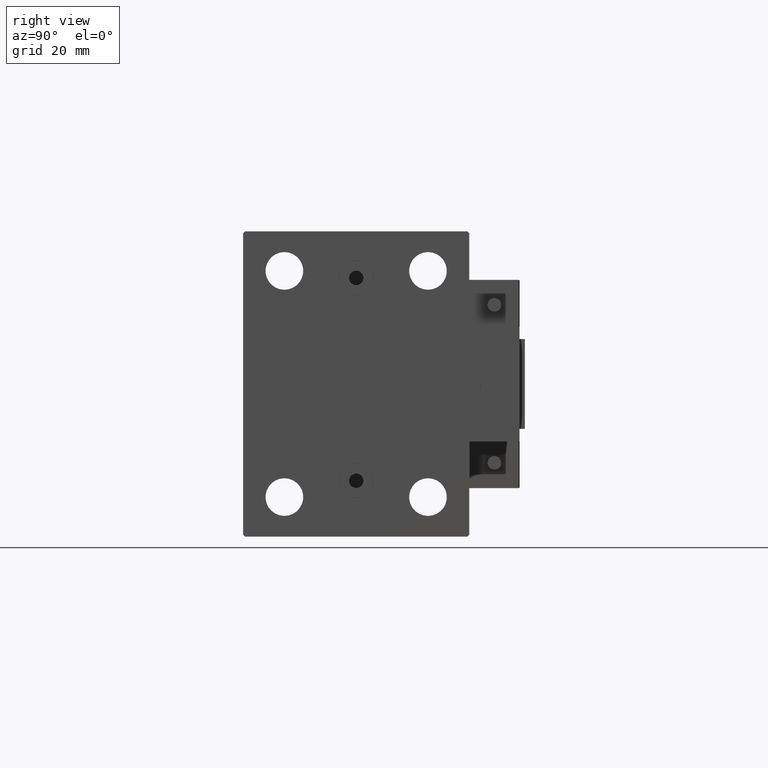
[diagram: clean part render]
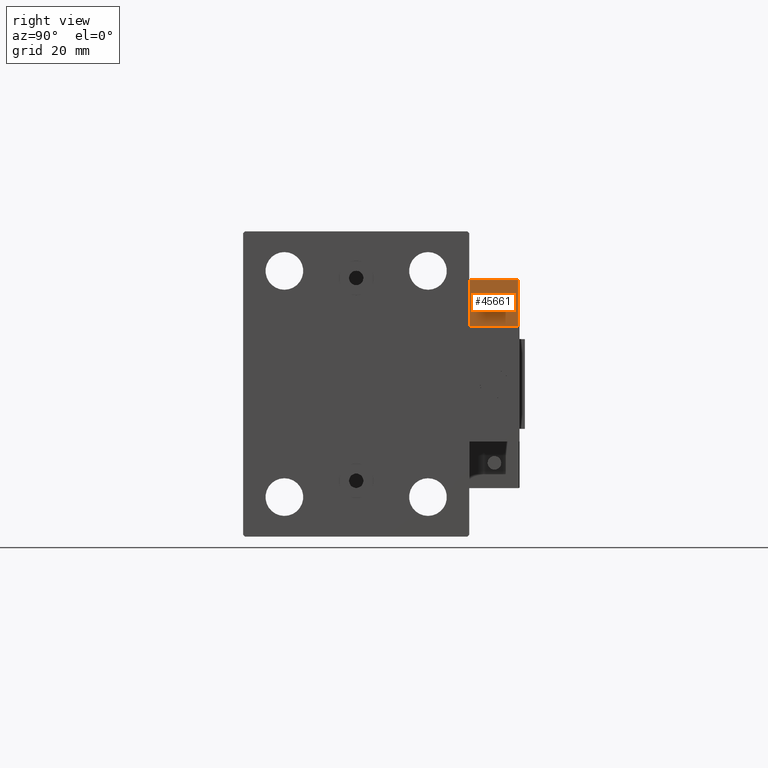
[diagram: same view with one face highlighted and labeled with its STEP entity id]
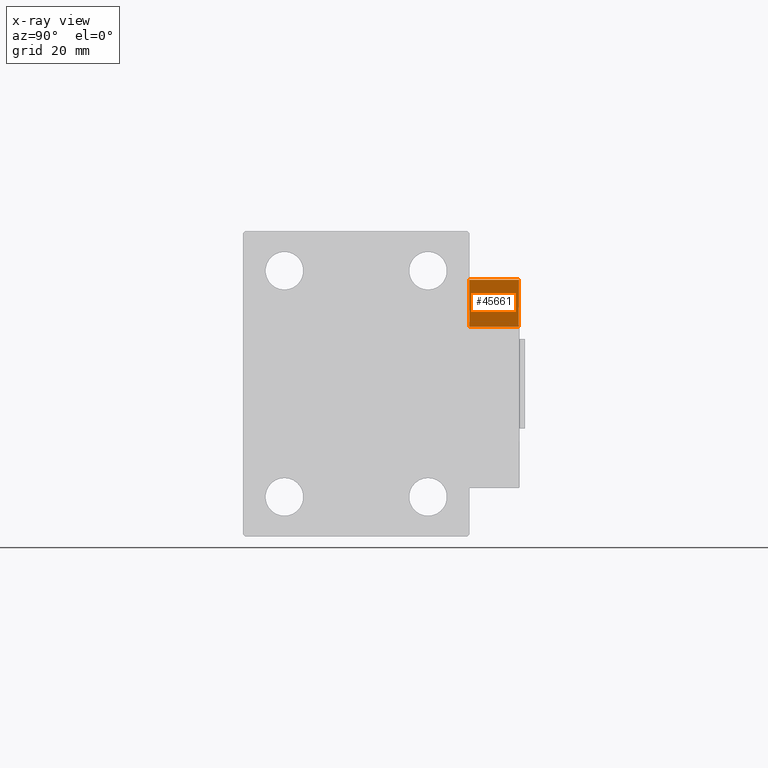
[diagram: x-ray of the same camera — body ghosted, the highlighted face saturated]
A machine part, right view. The second image highlights one B-rep face of the part: STEP entity #45661.
The next image is the same camera in x-ray: the body ghosted, the highlighted face saturated — about 6% of this face is hidden behind the body in this view.
In plain terms, the highlighted planar face has unit normal (-1, 0, 0).
Its self-contained STEP definition (entity closure, byte-faithful):
#123 = EDGE_CURVE ( 'NONE', #47266, #44735, #46110, .T. ) ;
#3758 = VECTOR ( 'NONE', #42307, 1000.000000000000000 ) ;
#4427 = VECTOR ( 'NONE', #41161, 1000.000000000000000 ) ;
#4790 = VERTEX_POINT ( 'NONE', #22324 ) ;
#10042 = CARTESIAN_POINT ( 'NONE',  ( -26.99999999999994671, 7.000000000000005329, 14.00000000000000000 ) ) ;
#10649 = DIRECTION ( 'NONE',  ( -8.006416042969869188E-16, -1.000000000000000000, 0.000000000000000000 ) ) ;
#11448 = VERTEX_POINT ( 'NONE', #44622 ) ;
#15547 = PLANE ( 'NONE',  #20853 ) ;
#15953 = CARTESIAN_POINT ( 'NONE',  ( -26.99999999999993605, 20.00000000000002132, 14.00000000000000000 ) ) ;
#18577 = ORIENTED_EDGE ( 'NONE', *, *, #38140, .F. ) ;
#19747 = CARTESIAN_POINT ( 'NONE',  ( -26.99999999999993605, 20.00000000000002132, 13.70000000000000107 ) ) ;
#20290 = EDGE_CURVE ( 'NONE', #44735, #4790, #29877, .T. ) ;
#20853 = AXIS2_PLACEMENT_3D ( 'NONE', #26715, #22909, #49996 ) ;
#22324 = CARTESIAN_POINT ( 'NONE',  ( -26.99999999999994671, 7.000000000000005329, 0.000000000000000000 ) ) ;
#22909 = DIRECTION ( 'NONE',  ( 1.000000000000000000, -8.006416042969869188E-16, 0.000000000000000000 ) ) ;
#24721 = LINE ( 'NONE', #10042, #4427 ) ;
#26050 = ORIENTED_EDGE ( 'NONE', *, *, #46500, .T. ) ;
#26715 = CARTESIAN_POINT ( 'NONE',  ( -26.99999999999993605, 20.00000000000002132, 14.00000000000000000 ) ) ;
#27247 = VECTOR ( 'NONE', #28064, 1000.000000000000000 ) ;
#28064 = DIRECTION ( 'NONE',  ( 8.006416042969869188E-16, 1.000000000000000000, -0.000000000000000000 ) ) ;
#28946 = CARTESIAN_POINT ( 'NONE',  ( -26.99999999999993605, 20.00000000000002132, 0.000000000000000000 ) ) ;
#29877 = LINE ( 'NONE', #45322, #42220 ) ;
#30744 = EDGE_LOOP ( 'NONE', ( #18577, #26050, #44905, #33199 ) ) ;
#33199 = ORIENTED_EDGE ( 'NONE', *, *, #20290, .T. ) ;
#38140 = EDGE_CURVE ( 'NONE', #11448, #4790, #24721, .T. ) ;
#41161 = DIRECTION ( 'NONE',  ( -0.000000000000000000, -0.000000000000000000, -1.000000000000000000 ) ) ;
#42220 = VECTOR ( 'NONE', #10649, 1000.000000000000000 ) ;
#42282 = CARTESIAN_POINT ( 'NONE',  ( -26.99999999999993605, 20.00000000000002132, 13.70000000000000107 ) ) ;
#42307 = DIRECTION ( 'NONE',  ( -0.000000000000000000, -0.000000000000000000, -1.000000000000000000 ) ) ;
#42641 = FACE_OUTER_BOUND ( 'NONE', #30744, .T. ) ;
#44622 = CARTESIAN_POINT ( 'NONE',  ( -26.99999999999994671, 7.000000000000005329, 13.70000000000000107 ) ) ;
#44735 = VERTEX_POINT ( 'NONE', #28946 ) ;
#44905 = ORIENTED_EDGE ( 'NONE', *, *, #123, .T. ) ;
#45322 = CARTESIAN_POINT ( 'NONE',  ( -26.99999999999993605, 20.00000000000002132, 0.000000000000000000 ) ) ;
#45661 = ADVANCED_FACE ( 'NONE', ( #42641 ), #15547, .F. ) ;
#46110 = LINE ( 'NONE', #15953, #3758 ) ;
#46500 = EDGE_CURVE ( 'NONE', #11448, #47266, #47318, .T. ) ;
#47266 = VERTEX_POINT ( 'NONE', #42282 ) ;
#47318 = LINE ( 'NONE', #19747, #27247 ) ;
#49996 = DIRECTION ( 'NONE',  ( 8.006416042969869188E-16, 1.000000000000000000, 0.000000000000000000 ) ) ;